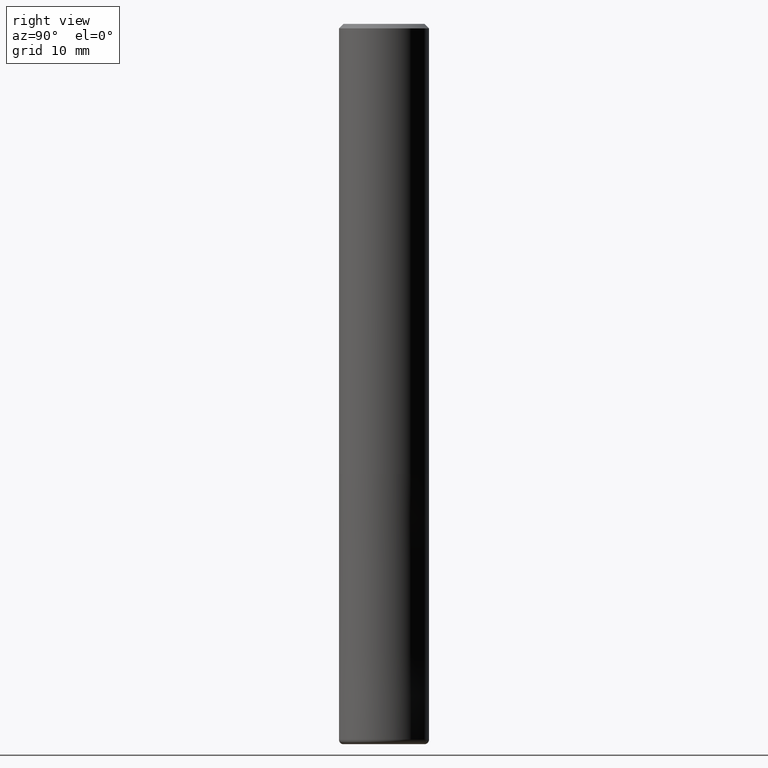
[diagram: clean part render]
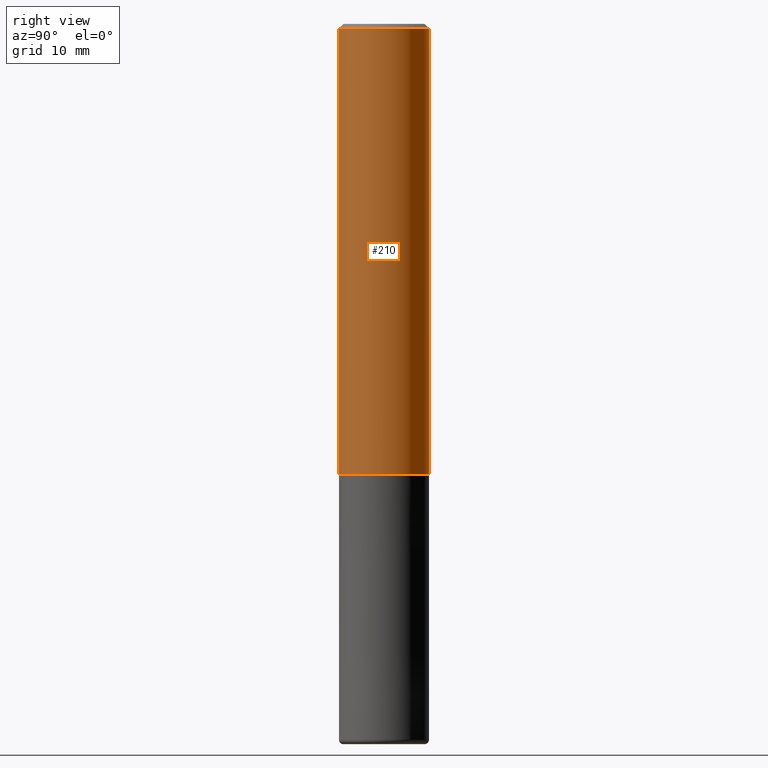
[diagram: same view with one face highlighted and labeled with its STEP entity id]
A machine part, right view. The second image highlights one B-rep face of the part: STEP entity #210.
In plain terms, the highlighted cylindrical surface (partial cylindrical patch) has radius 5 mm, axis along (-0, -0, 1).
Its self-contained STEP definition (entity closure, byte-faithful):
#104=EDGE_CURVE('',#222,#118,#265,.T.);
#116=VERTEX_POINT('',#279);
#118=VERTEX_POINT('',#281);
#130=EDGE_CURVE('',#222,#188,#295,.T.);
#188=VERTEX_POINT('',#361);
#210=ADVANCED_FACE('',(#384),#385,.T.);
#222=VERTEX_POINT('',#398);
#226=EDGE_CURVE('',#116,#118,#403,.T.);
#242=EDGE_CURVE('',#188,#116,#423,.T.);
#265=CIRCLE('',#439,5.0);
#279=CARTESIAN_POINT('',(6.12303176911189E-016,-5.0,-50.0));
#281=CARTESIAN_POINT('',(6.12303176911189E-016,-5.0,-0.5));
#295=LINE('',#474,#475);
#361=CARTESIAN_POINT('',(0.0,5.0,-50.0));
#384=FACE_OUTER_BOUND('',#587,.T.);
#385=CYLINDRICAL_SURFACE('',#588,5.0);
#398=CARTESIAN_POINT('',(0.0,5.0,-0.5));
#403=LINE('',#610,#611);
#423=CIRCLE('',#635,5.0);
#439=AXIS2_PLACEMENT_3D('',#640,#641,#642);
#474=CARTESIAN_POINT('',(-6.12303176911189E-016,5.0,-25.25));
#475=VECTOR('',#678,1.0);
#587=EDGE_LOOP('',(#785,#786,#787,#788));
#588=AXIS2_PLACEMENT_3D('',#789,#790,#791);
#610=CARTESIAN_POINT('',(6.12303176911189E-016,-5.0,-25.25));
#611=VECTOR('',#810,1.0);
#635=AXIS2_PLACEMENT_3D('',#844,#845,#846);
#640=CARTESIAN_POINT('',(0.0,0.0,-0.5));
#641=DIRECTION('',(0.0,0.0,-1.0));
#642=DIRECTION('',(0.0,1.0,0.0));
#678=DIRECTION('',(0.0,0.0,-1.0));
#785=ORIENTED_EDGE('',*,*,#130,.F.);
#786=ORIENTED_EDGE('',*,*,#104,.T.);
#787=ORIENTED_EDGE('',*,*,#226,.F.);
#788=ORIENTED_EDGE('',*,*,#242,.F.);
#789=CARTESIAN_POINT('',(0.0,0.0,-25.25));
#790=DIRECTION('',(-0.0,-0.0,1.0));
#791=DIRECTION('',(0.0,1.0,0.0));
#810=DIRECTION('',(-0.0,-0.0,1.0));
#844=CARTESIAN_POINT('',(0.0,0.0,-50.0));
#845=DIRECTION('',(0.0,0.0,-1.0));
#846=DIRECTION('',(0.0,1.0,0.0));